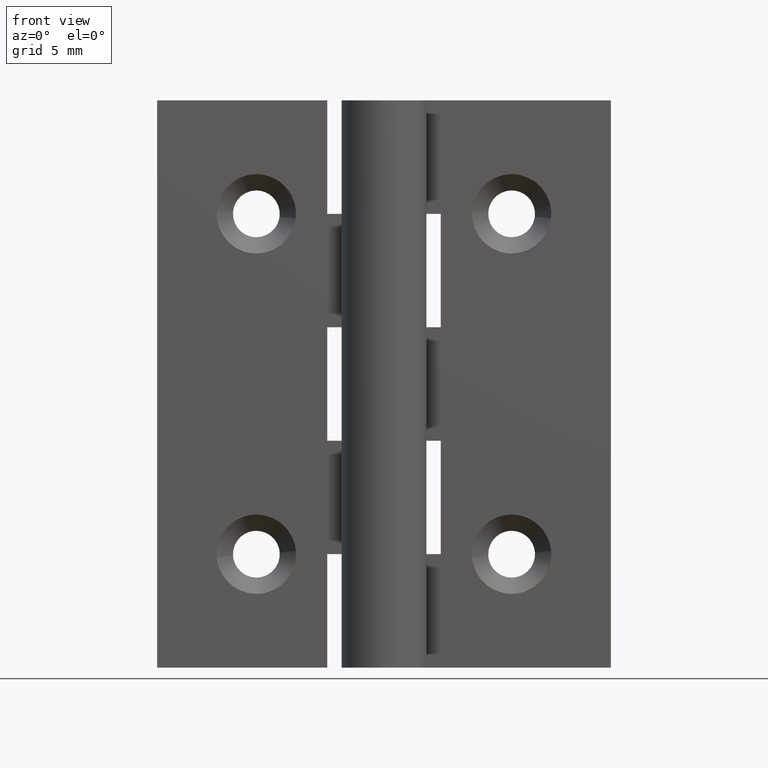
[diagram: clean part render]
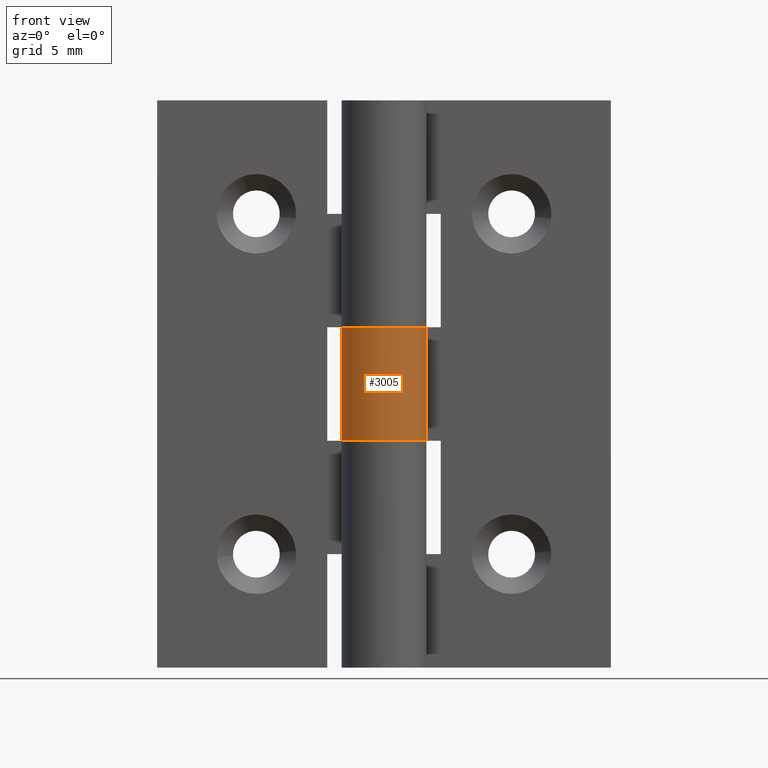
[diagram: same view with one face highlighted and labeled with its STEP entity id]
A machine part, front view. The second image highlights one B-rep face of the part: STEP entity #3005.
In plain terms, the highlighted face is a freeform B-spline surface patch.
Its self-contained STEP definition (entity closure, byte-faithful):
#2471=CARTESIAN_POINT('',(2.626309197333780,1.450000000000000,24.0));
#2472=VERTEX_POINT('',#2471);
#2473=CARTESIAN_POINT('',(0.0,3.0,24.0));
#2474=VERTEX_POINT('',#2473);
#2475=CARTESIAN_POINT('',(2.626309197333780,1.450000000000000,24.0));
#2476=CARTESIAN_POINT('',(3.733431584505770,-0.555272902071676,23.999999999999996));
#2477=CARTESIAN_POINT('',(2.090650590886091,-2.151552952364325,24.0));
#2478=CARTESIAN_POINT('',(0.447869597266413,-3.747833002656972,23.999999999999996));
#2479=CARTESIAN_POINT('',(-1.524795068197689,-2.583602136552763,24.0));
#2480=CARTESIAN_POINT('',(-3.497459733661793,-1.419371270448554,23.999999999999996));
#2481=CARTESIAN_POINT('',(-2.894028888043301,0.790314364775723,24.0));
#2482=CARTESIAN_POINT('',(-2.290598042424808,3.0,23.999999999999996));
#2483=CARTESIAN_POINT('',(0.0,3.0,24.0));
#2491=(BOUNDED_CURVE()B_SPLINE_CURVE(2,(#2475,#2476,#2477,#2478,#2479,#2480,#2481,#2482,#2483),.UNSPECIFIED.,.F.,.U.)B_SPLINE_CURVE_WITH_KNOTS((3,2,2,2,3),(0.0,0.250000000000000,0.500000000000000,0.750000000000000,1.0),.UNSPECIFIED.)CURVE()GEOMETRIC_REPRESENTATION_ITEM()RATIONAL_B_SPLINE_CURVE((1.0,0.794807562115481,1.0,0.794807562115481,1.0,0.794807562115481,1.0,0.794807562115481,1.0))REPRESENTATION_ITEM(''));
#2492=EDGE_CURVE('',#2472,#2474,#2491,.T.);
#2647=CARTESIAN_POINT('',(0.0,3.0,16.0));
#2648=VERTEX_POINT('',#2647);
#2691=CARTESIAN_POINT('',(2.626309197333780,1.450000000000000,16.0));
#2692=VERTEX_POINT('',#2691);
#2698=CARTESIAN_POINT('',(0.0,3.0,16.0));
#2699=CARTESIAN_POINT('',(-2.290598042424809,3.000000000000000,15.999999999999995));
#2700=CARTESIAN_POINT('',(-2.894028888043301,0.790314364775724,16.0));
#2701=CARTESIAN_POINT('',(-3.497459733661795,-1.419371270448553,15.999999999999995));
#2702=CARTESIAN_POINT('',(-1.524795068197690,-2.583602136552763,16.0));
#2703=CARTESIAN_POINT('',(0.447869597266411,-3.747833002656972,15.999999999999995));
#2704=CARTESIAN_POINT('',(2.090650590886090,-2.151552952364325,16.0));
#2705=CARTESIAN_POINT('',(3.733431584505770,-0.555272902071677,15.999999999999995));
#2706=CARTESIAN_POINT('',(2.626309197333780,1.449999999999999,16.0));
#2714=(BOUNDED_CURVE()B_SPLINE_CURVE(2,(#2698,#2699,#2700,#2701,#2702,#2703,#2704,#2705,#2706),.UNSPECIFIED.,.F.,.U.)B_SPLINE_CURVE_WITH_KNOTS((3,2,2,2,3),(0.0,0.250000000000000,0.500000000000000,0.750000000000000,1.0),.UNSPECIFIED.)CURVE()GEOMETRIC_REPRESENTATION_ITEM()RATIONAL_B_SPLINE_CURVE((1.0,0.794807562115481,1.0,0.794807562115481,1.0,0.794807562115481,1.0,0.794807562115481,1.0))REPRESENTATION_ITEM(''));
#2715=EDGE_CURVE('',#2648,#2692,#2714,.T.);
#2969=CARTESIAN_POINT('',(2.584887481324576,1.522615088882112,15.800000000000001));
#2970=CARTESIAN_POINT('',(2.584887481324576,1.522615088882112,24.205000000000009));
#2971=CARTESIAN_POINT('',(4.454017153952614,-1.650537421576552,15.800000000000001));
#2972=CARTESIAN_POINT('',(4.454017153952614,-1.650537421576552,24.205000000000013));
#2973=CARTESIAN_POINT('',(0.968449136630486,-2.839384840024272,15.800000000000001));
#2974=CARTESIAN_POINT('',(0.968449136630486,-2.839384840024272,24.205000000000009));
#2975=CARTESIAN_POINT('',(-2.517118880691642,-4.028232258471992,15.800000000000001));
#2976=CARTESIAN_POINT('',(-2.517118880691642,-4.028232258471992,24.205000000000013));
#2977=CARTESIAN_POINT('',(-2.976562347997527,-0.374268070349911,15.800000000000001));
#2978=CARTESIAN_POINT('',(-2.976562347997527,-0.374268070349911,24.205000000000009));
#2979=CARTESIAN_POINT('',(-3.436005815303412,3.279696117772171,15.800000000000001));
#2980=CARTESIAN_POINT('',(-3.436005815303412,3.279696117772171,24.205000000000013));
#2981=CARTESIAN_POINT('',(0.235377287183536,2.990752001199384,15.800000000000001));
#2982=CARTESIAN_POINT('',(0.235377287183536,2.990752001199384,24.205000000000009));
#2990=(BOUNDED_SURFACE()B_SPLINE_SURFACE(1,2,((#2969,#2971,#2973,#2975,#2977,#2979,#2981),(#2970,#2972,#2974,#2976,#2978,#2980,#2982)),.UNSPECIFIED.,.F.,.F.,.U.)B_SPLINE_SURFACE_WITH_KNOTS((2,2),(3,2,2,3),(0.0,8.405000000000007),(0.0,5.702297214197750,11.404594428395500,17.106891642593251),.UNSPECIFIED.)GEOMETRIC_REPRESENTATION_ITEM()RATIONAL_B_SPLINE_SURFACE(((1.0,0.631578351302498,1.0,0.631578351302498,1.0,0.631578351302498,1.0),(1.0,0.631578351302498,1.0,0.631578351302498,1.0,0.631578351302498,1.0)))REPRESENTATION_ITEM('')SURFACE());
#2991=CARTESIAN_POINT('',(2.626309197333780,1.450000000000000,16.0));
#2992=CARTESIAN_POINT('',(2.626309197333780,1.450000000000000,24.0));
#2993=QUASI_UNIFORM_CURVE('',1,(#2991,#2992),.UNSPECIFIED.,.F.,.U.);
#2994=EDGE_CURVE('',#2692,#2472,#2993,.T.);
#2995=ORIENTED_EDGE('',*,*,#2994,.T.);
#2996=ORIENTED_EDGE('',*,*,#2492,.T.);
#2997=CARTESIAN_POINT('',(0.0,3.0,16.0));
#2998=CARTESIAN_POINT('',(0.0,3.0,24.0));
#2999=QUASI_UNIFORM_CURVE('',1,(#2997,#2998),.UNSPECIFIED.,.F.,.U.);
#3000=EDGE_CURVE('',#2648,#2474,#2999,.T.);
#3001=ORIENTED_EDGE('',*,*,#3000,.F.);
#3002=ORIENTED_EDGE('',*,*,#2715,.T.);
#3003=EDGE_LOOP('',(#2995,#2996,#3001,#3002));
#3004=FACE_OUTER_BOUND('',#3003,.T.);
#3005=ADVANCED_FACE('',(#3004),#2990,.T.);